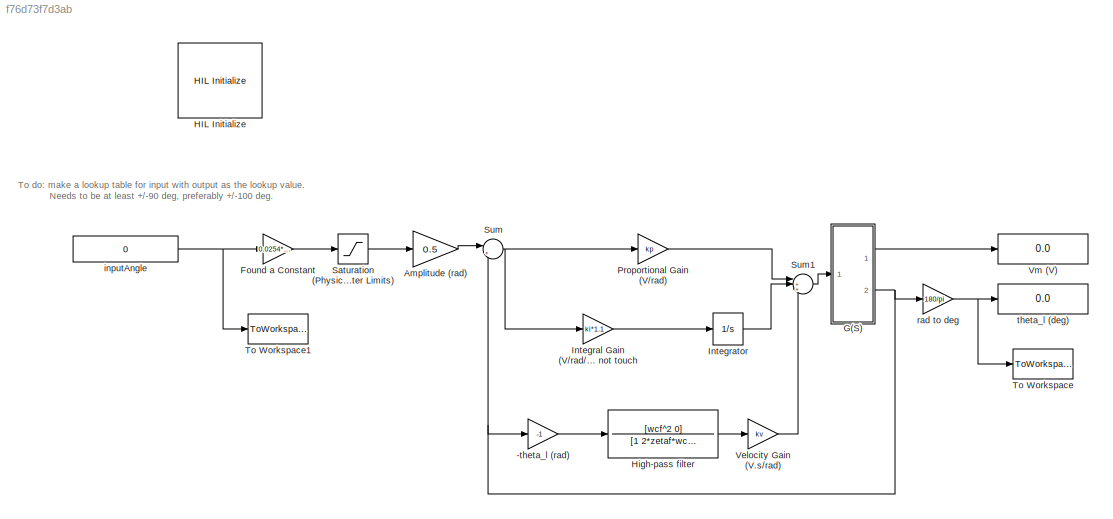
MODEL slx_f76d73f7d3ab
KIND model
CONFIG StartFcn = callBack
BLOCK [Gain] -theta_l (rad)
  Gain = -1
  OutDataTypeStr = Inherit: Inherit via internal rule
  ParamDataTypeStr = Inherit: Inherit via internal rule
  SaturateOnIntegerOverflow = off
BLOCK [Gain] Amplitude (rad)
  Gain = 0.5
BLOCK [Gain] Found a Constant
  Gain = 0.0254*5/3.62
  OutDataTypeStr = Inherit: Inherit via internal rule
  ParamDataTypeStr = Inherit: Inherit via internal rule
  SaturateOnIntegerOverflow = off
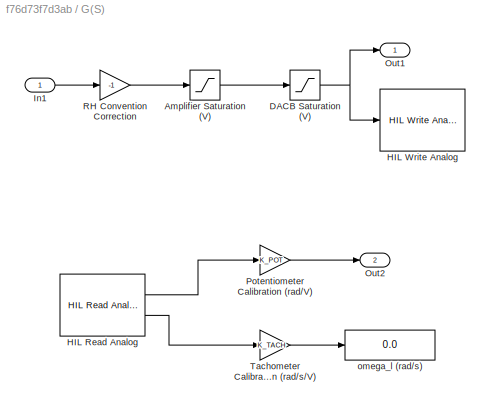
BLOCK [SubSystem] G(S)
  Ports = [1, 2]
  RequestExecContextInheritance = off
BLOCK [Saturate] G(S)/Amplifier Saturation (V)
  InputPortMap = u0
  LowerLimit = -VMAX_AMP
  Ports = [1, 1]
  UpperLimit = VMAX_AMP
BLOCK [Saturate] G(S)/DACB Saturation (V)
  InputPortMap = u0
  LowerLimit = -.5
  Ports = [1, 1]
  UpperLimit = .5
BLOCK [Reference] G(S)/HIL Read Analog  REF=quarc_library/Data Acquisition/Generic/Immediate I//O/HIL Read Analog
  AttributesFormatString = (%<object_name>)
  Ports = [0, 2]
  SourceBlock = quarc_library/Data Acquisition/Generic/Immediate I//O/HIL Read Analog
  SourceType = HIL Read Analog
  UserDataPersistent = on
  active = on
  channels = [0:1]
  object_name = Q2-USB
  sample_time = qc_get_step_size
  vector_output = off
BLOCK [Reference] G(S)/HIL Write Analog  REF=quarc_library/Data Acquisition/Generic/Immediate I//O/HIL Write Analog
  AttributesFormatString = (%<object_name>)
  Ports = [1]
  SourceBlock = quarc_library/Data Acquisition/Generic/Immediate I//O/HIL Write Analog
  SourceType = HIL Write Analog
  UserDataPersistent = on
  active = off
  channels = 0
  object_name = Q2-USB
  sample_time = -1
  vector_input = off
BLOCK [Inport] G(S)/In1
  IconDisplay = Port number
BLOCK [Outport] G(S)/Out1
  IconDisplay = Port number
BLOCK [Outport] G(S)/Out2
  IconDisplay = Port number
  Port = 2
BLOCK [Gain] G(S)/Potentiometer Calibration (rad//V)
  Gain = K_POT
  OutDataTypeStr = Inherit: Inherit via internal rule
  ParamDataTypeStr = Inherit: Inherit via internal rule
  SaturateOnIntegerOverflow = off
BLOCK [Gain] G(S)/RH Convention Correction
  Gain = -1
  OutDataTypeStr = Inherit: Inherit via internal rule
  ParamDataTypeStr = Inherit: Inherit via internal rule
  SaturateOnIntegerOverflow = off
BLOCK [Gain] G(S)/Tachometer Calibration (rad//s//V)
  Gain = K_TACH
  OutDataTypeStr = Inherit: Inherit via internal rule
  ParamDataTypeStr = Inherit: Inherit via internal rule
  SaturateOnIntegerOverflow = off
BLOCK [Display] G(S)/omega_l (rad//s)
  Decimation = 1
  Ports = [1]
BLOCK [Reference] HIL Initialize  REF=quarc_library/Data Acquisition/Generic/Configuration/HIL Initialize
  AttributesFormatString = %<object_name> (%<board_type>-%<board_number>)
  Ports = []
  Priority = -99
  SourceBlock = quarc_library/Data Acquisition/Generic/Configuration/HIL Initialize
  SourceType = HIL Initialize
  UserDataPersistent = on
  active = off
  analog_input_channels = [0:1]
  analog_input_maximums = 10
  analog_input_minimums = -10
  analog_output_channels = [0]
  analog_output_maximums = 10
  analog_output_minimums = -10
  board_number = 0
  board_options = d0=digital;d1=digital;led=auto;update_rate=normal;decimation=1
  board_type = q2_usb
  clock_modes = []
  digital_input_channels = []
  digital_output_channels = []
  digital_output_configuration = []
  encoder_channels = []
  encoder_filter_frequency = []
  exclusive = off
  final_analog_outputs = [0]
  final_digital_outputs = [1]
  final_other_outputs = []
  final_pwm_outputs = [0]
  hardware_clocks = [0]
  initial_analog_outputs = [0]
  initial_clock_frequencies = []
  initial_digital_outputs = [1]
  initial_encoder_counts = [0]
  initial_other_outputs = []
  initial_pwm_outputs = [0]
  object_name = Q2-USB
  other_output_channels = []
  pwm_alignment = []
  pwm_channels = []
  pwm_configuration = []
  pwm_frequency = 1/0.020
  pwm_leading_deadband = []
  pwm_modes = [0]
  pwm_polarity = []
  pwm_trailing_deadband = []
  quadrature = [4]
  set_analog_input_params_at_start = on
  set_analog_input_params_at_switch_in = off
  set_analog_output_params_at_start = on
  set_analog_output_params_at_switch_in = off
  set_analog_outputs_at_start = on
  set_analog_outputs_at_switch_in = off
  set_analog_outputs_at_switch_out = off
  set_analog_outputs_at_terminate = on
  set_analog_outputs_on_watchdog = off
  set_clock_frequencies_at_start = off
  set_clock_frequencies_at_switch_in = off
  set_clock_params_at_start = off
  set_clock_params_at_switch_in = off
  set_digital_output_params_at_start = off
  set_digital_output_params_at_switch_in = off
  set_digital_outputs_at_start = off
  set_digital_outputs_at_switch_in = off
  set_digital_outputs_at_switch_out = off
  set_digital_outputs_at_terminate = off
  set_digital_outputs_on_watchdog = off
  set_encoder_counts_at_start = on
  set_encoder_counts_at_switch_in = off
  set_encoder_params_at_start = on
  set_encoder_params_at_switch_in = off
  set_other_outputs_at_start = off
  set_other_outputs_at_switch_in = off
  set_other_outputs_at_switch_out = off
  set_other_outputs_at_terminate = off
  set_other_outputs_on_watchdog = off
  set_pwm_outputs_at_start = on
  set_pwm_outputs_at_switch_in = off
  set_pwm_outputs_at_switch_out = off
  set_pwm_outputs_at_terminate = on
  set_pwm_outputs_on_watchdog = off
  set_pwm_params_at_start = on
  set_pwm_params_at_switch_in = off
  watchdog_analog_outputs = 0
  watchdog_digital_outputs = [1]
  watchdog_other_outputs = []
  watchdog_pwm_outputs = [0]
BLOCK [TransferFcn] High-pass filter
  Denominator = [1 2*zetaf*wcf wcf^2]
  Numerator = [wcf^2 0]
BLOCK [Gain] Integral Gain (V//rad//s) Do not touch
  Gain = ki*1.1
  OutDataTypeStr = Inherit: Inherit via internal rule
  ParamDataTypeStr = Inherit: Inherit via internal rule
  SaturateOnIntegerOverflow = off
BLOCK [Integrator] Integrator
  LimitOutput = on
  LowerSaturationLimit = -VMAX_DAC
  Ports = [1, 1]
  UpperSaturationLimit = VMAX_DAC
BLOCK [Gain] Proportional Gain (V//rad)
  Gain = kp
  OutDataTypeStr = Inherit: Inherit via internal rule
  ParamDataTypeStr = Inherit: Inherit via internal rule
  SaturateOnIntegerOverflow = off
BLOCK [Saturate] Saturation (Physical Potentiometer Limits)
  InputPortMap = u0
  LowerLimit = -7.65
  Ports = [1, 1]
  UpperLimit = 7.55
BLOCK [Sum] Sum
  IconShape = round
  InputSameDT = off
  Inputs = |+-
  OutDataTypeStr = Inherit: Inherit via internal rule
  Ports = [2, 1]
  SaturateOnIntegerOverflow = off
BLOCK [Sum] Sum1
  IconShape = round
  InputSameDT = off
  Inputs = |+++
  OutDataTypeStr = Inherit: Inherit via internal rule
  Ports = [3, 1]
  SaturateOnIntegerOverflow = off
BLOCK [ToWorkspace] To Workspace
  FixptAsFi = on
  MaxDataPoints = inf
  Ports = [1]
  SampleTime = -1
  Save2DSignal = 3-D array (concatenate along third dimension)
  VariableName = theta_l
BLOCK [ToWorkspace] To Workspace1
  FixptAsFi = on
  MaxDataPoints = inf
  Ports = [1]
  SampleTime = -1
  Save2DSignal = 3-D array (concatenate along third dimension)
  VariableName = input
BLOCK [Gain] Velocity Gain (V.s//rad)
  Gain = kv
  OutDataTypeStr = Inherit: Inherit via internal rule
  ParamDataTypeStr = Inherit: Inherit via internal rule
  SaturateOnIntegerOverflow = off
BLOCK [Display] Vm  (V)
  Decimation = 1
  Ports = [1]
BLOCK [Constant] inputAngle
  Value = 0
BLOCK [Gain] rad to deg
  Gain = 180/pi
  OutDataTypeStr = Inherit: Inherit via internal rule
  ParamDataTypeStr = Inherit: Inherit via internal rule
  SaturateOnIntegerOverflow = off
BLOCK [Display] theta_l (deg)
  Decimation = 1
  Ports = [1]
ANNOTATION (root): To do: make a lookup table for input with output as the lookup value. Needs to be at least +/-90 deg, preferably +/-100 deg.
LINE -theta_l (rad):1 -> High-pass filter:1
LINE Amplitude (rad):1 -> Sum:1
LINE Found a Constant:1 -> Saturation (Physical Potentiometer Limits):1
LINE G(S)/Amplifier Saturation (V):1 -> G(S)/DACB Saturation (V):1
NET G(S)/DACB Saturation (V):1 -> G(S)/HIL Write Analog:1, G(S)/Out1:1
LINE G(S)/HIL Read Analog:1 -> G(S)/Potentiometer Calibration (rad//V):1
LINE G(S)/HIL Read Analog:2 -> G(S)/Tachometer Calibration (rad//s//V):1
LINE G(S)/In1:1 -> G(S)/RH Convention Correction:1
LINE G(S)/Potentiometer Calibration (rad//V):1 -> G(S)/Out2:1
LINE G(S)/RH Convention Correction:1 -> G(S)/Amplifier Saturation (V):1
LINE G(S)/Tachometer Calibration (rad//s//V):1 -> G(S)/omega_l (rad//s):1
LINE G(S):1 -> Vm  (V):1
NET G(S):2 -> -theta_l (rad):1, Sum:2, rad to deg:1
LINE High-pass filter:1 -> Velocity Gain (V.s//rad):1
LINE Integral Gain (V//rad//s) Do not touch:1 -> Integrator:1
LINE Integrator:1 -> Sum1:2
LINE Proportional Gain (V//rad):1 -> Sum1:1
LINE Saturation (Physical Potentiometer Limits):1 -> Amplitude (rad):1
LINE Sum1:1 -> G(S):1
NET Sum:1 -> Integral Gain (V//rad//s) Do not touch:1, Proportional Gain (V//rad):1
LINE Velocity Gain (V.s//rad):1 -> Sum1:3
NET inputAngle:1 -> Found a Constant:1, To Workspace1:1
NET rad to deg:1 -> To Workspace:1, theta_l (deg):1
note: NET lines group one-source signal fan-out (src -> all destinations, sorted); 1:1 wires keep LINE
